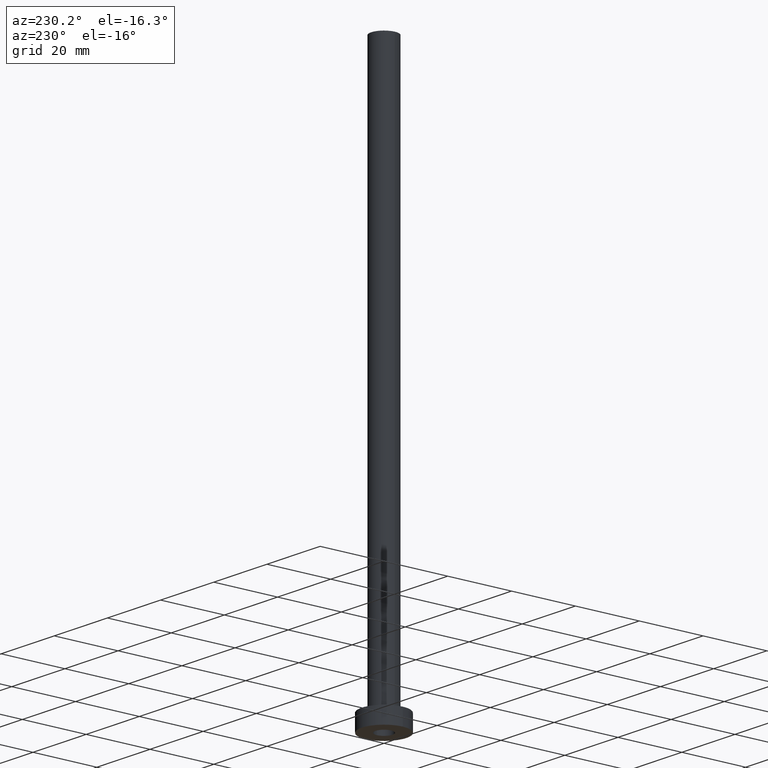
[diagram: clean part render]
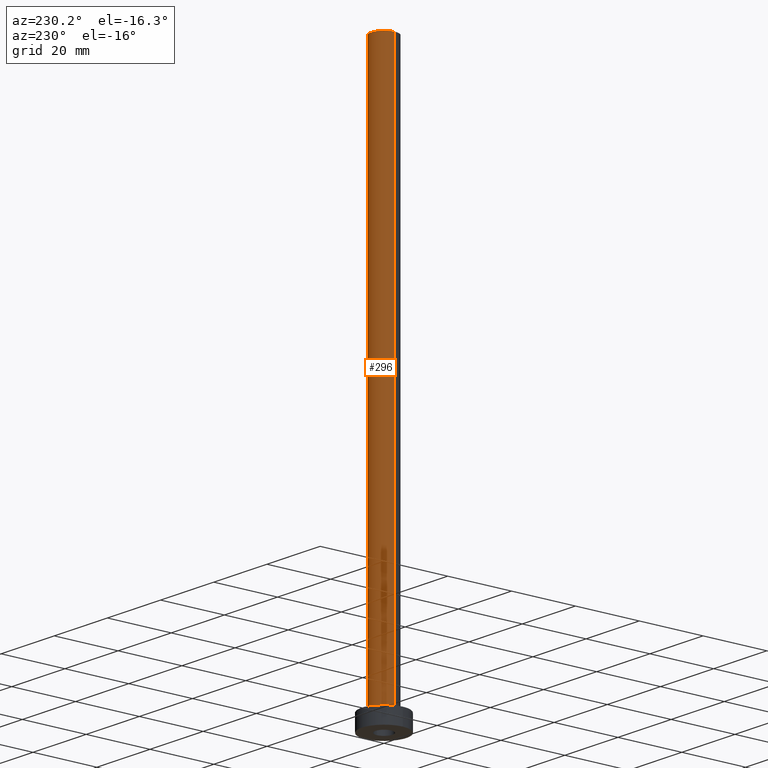
[diagram: same view with one face highlighted and labeled with its STEP entity id]
A machine part, auxiliary view. The second image highlights one B-rep face of the part: STEP entity #296.
In plain terms, the highlighted cylindrical surface (edge-blend (fillet) strip) has radius 4 mm, axis along (-0, -0, -1).
Its self-contained STEP definition (entity closure, byte-faithful):
#7 = EDGE_CURVE ( 'NONE', #421, #197, #212, .T. ) ;
#19 = CARTESIAN_POINT ( 'NONE',  ( 4.000000000000000000, 4.898587196589412829E-16, 5.500000000000005329 ) ) ;
#36 = CIRCLE ( 'NONE', #303, 4.000000000000000000 ) ;
#52 = DIRECTION ( 'NONE',  ( 1.000000000000000000, 0.000000000000000000, 0.000000000000000000 ) ) ;
#64 = CARTESIAN_POINT ( 'NONE',  ( 0.000000000000000000, 0.000000000000000000, 5.500000000000005329 ) ) ;
#76 = FACE_OUTER_BOUND ( 'NONE', #152, .T. ) ;
#87 = ORIENTED_EDGE ( 'NONE', *, *, #126, .F. ) ;
#89 = CIRCLE ( 'NONE', #184, 4.000000000000000000 ) ;
#111 = EDGE_CURVE ( 'NONE', #421, #155, #36, .T. ) ;
#120 = VERTEX_POINT ( 'NONE', #232 ) ;
#126 = EDGE_CURVE ( 'NONE', #155, #120, #378, .T. ) ;
#132 = CARTESIAN_POINT ( 'NONE',  ( 0.000000000000000000, 0.000000000000000000, 175.0000000000000284 ) ) ;
#152 = EDGE_LOOP ( 'NONE', ( #305, #406, #156, #87 ) ) ;
#155 = VERTEX_POINT ( 'NONE', #387 ) ;
#156 = ORIENTED_EDGE ( 'NONE', *, *, #173, .T. ) ;
#164 = VECTOR ( 'NONE', #371, 1000.000000000000000 ) ;
#173 = EDGE_CURVE ( 'NONE', #197, #120, #89, .T. ) ;
#184 = AXIS2_PLACEMENT_3D ( 'NONE', #64, #357, #283 ) ;
#197 = VERTEX_POINT ( 'NONE', #19 ) ;
#206 = VECTOR ( 'NONE', #250, 1000.000000000000000 ) ;
#212 = LINE ( 'NONE', #459, #206 ) ;
#214 = AXIS2_PLACEMENT_3D ( 'NONE', #320, #365, #394 ) ;
#232 = CARTESIAN_POINT ( 'NONE',  ( -4.000000000000000000, 0.000000000000000000, 5.500000000000005329 ) ) ;
#250 = DIRECTION ( 'NONE',  ( -0.000000000000000000, -0.000000000000000000, -1.000000000000000000 ) ) ;
#283 = DIRECTION ( 'NONE',  ( 1.000000000000000000, 0.000000000000000000, 0.000000000000000000 ) ) ;
#296 = ADVANCED_FACE ( 'NONE', ( #76 ), #358, .T. ) ;
#303 = AXIS2_PLACEMENT_3D ( 'NONE', #132, #379, #52 ) ;
#305 = ORIENTED_EDGE ( 'NONE', *, *, #111, .F. ) ;
#320 = CARTESIAN_POINT ( 'NONE',  ( 0.000000000000000000, 0.000000000000000000, 175.0000000000000284 ) ) ;
#357 = DIRECTION ( 'NONE',  ( 0.000000000000000000, 0.000000000000000000, 1.000000000000000000 ) ) ;
#358 = CYLINDRICAL_SURFACE ( 'NONE', #214, 4.000000000000000000 ) ;
#365 = DIRECTION ( 'NONE',  ( -0.000000000000000000, -0.000000000000000000, -1.000000000000000000 ) ) ;
#371 = DIRECTION ( 'NONE',  ( -0.000000000000000000, -0.000000000000000000, -1.000000000000000000 ) ) ;
#378 = LINE ( 'NONE', #402, #164 ) ;
#379 = DIRECTION ( 'NONE',  ( 0.000000000000000000, 0.000000000000000000, 1.000000000000000000 ) ) ;
#387 = CARTESIAN_POINT ( 'NONE',  ( -4.000000000000000000, 0.000000000000000000, 175.0000000000000284 ) ) ;
#394 = DIRECTION ( 'NONE',  ( -1.000000000000000000, 0.000000000000000000, 0.000000000000000000 ) ) ;
#402 = CARTESIAN_POINT ( 'NONE',  ( -4.000000000000000000, 0.000000000000000000, 175.0000000000000284 ) ) ;
#406 = ORIENTED_EDGE ( 'NONE', *, *, #7, .T. ) ;
#421 = VERTEX_POINT ( 'NONE', #444 ) ;
#444 = CARTESIAN_POINT ( 'NONE',  ( 4.000000000000000000, 4.898587196589412829E-16, 175.0000000000000284 ) ) ;
#459 = CARTESIAN_POINT ( 'NONE',  ( 4.000000000000000000, 4.898587196589412829E-16, 175.0000000000000284 ) ) ;